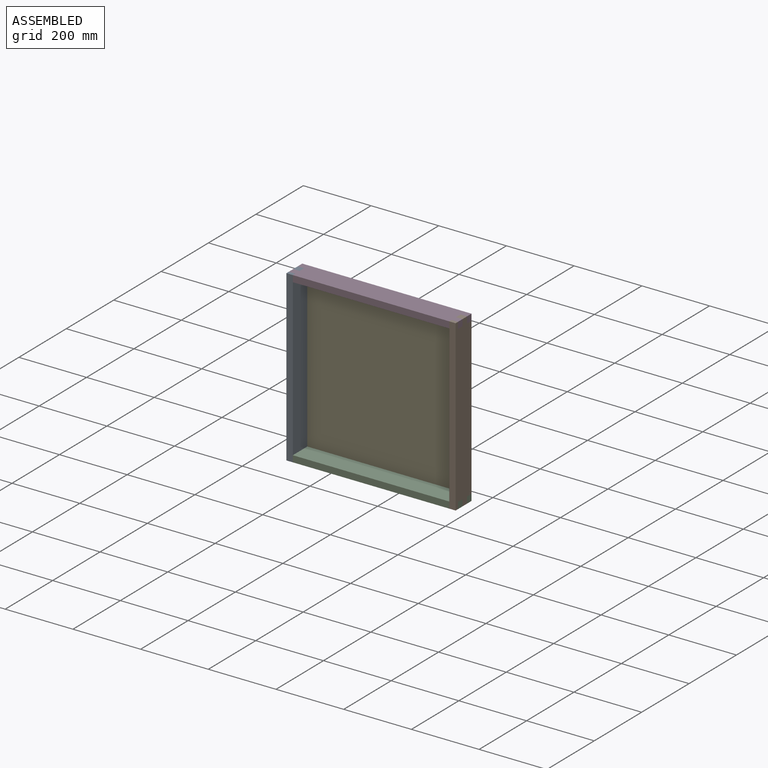
[diagram: assembled view]
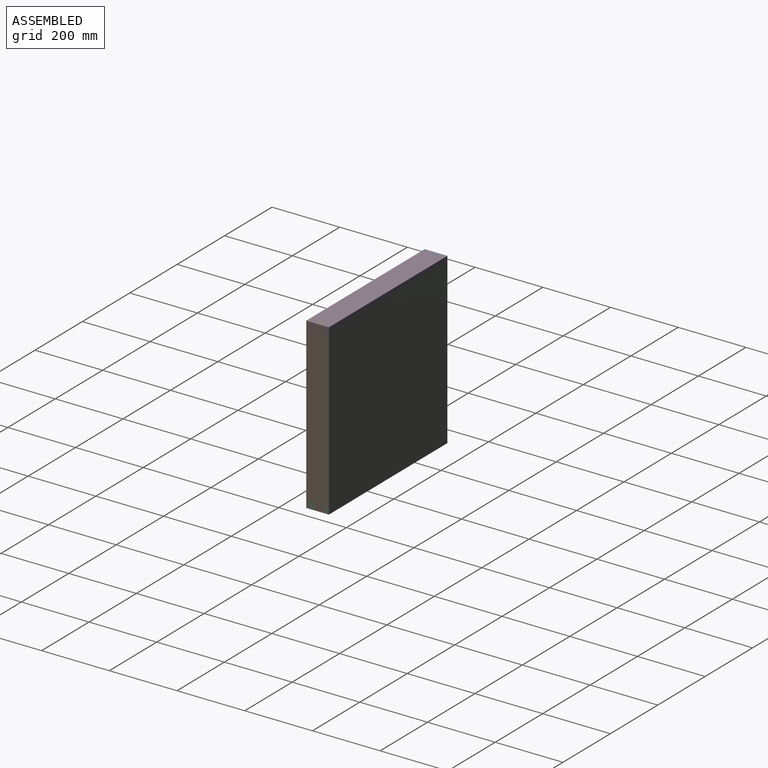
[diagram: assembled view, second angle]
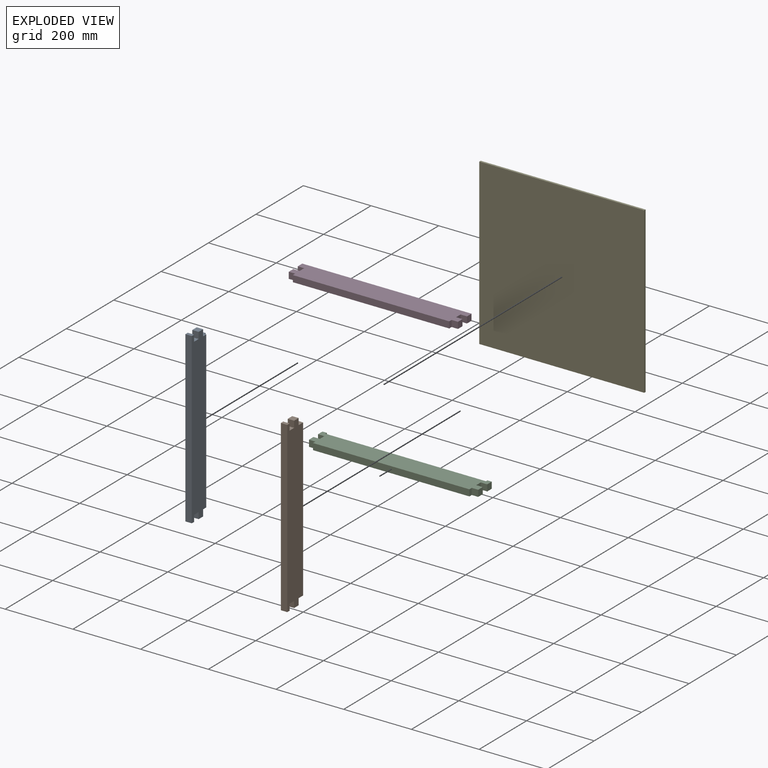
[diagram: exploded view]
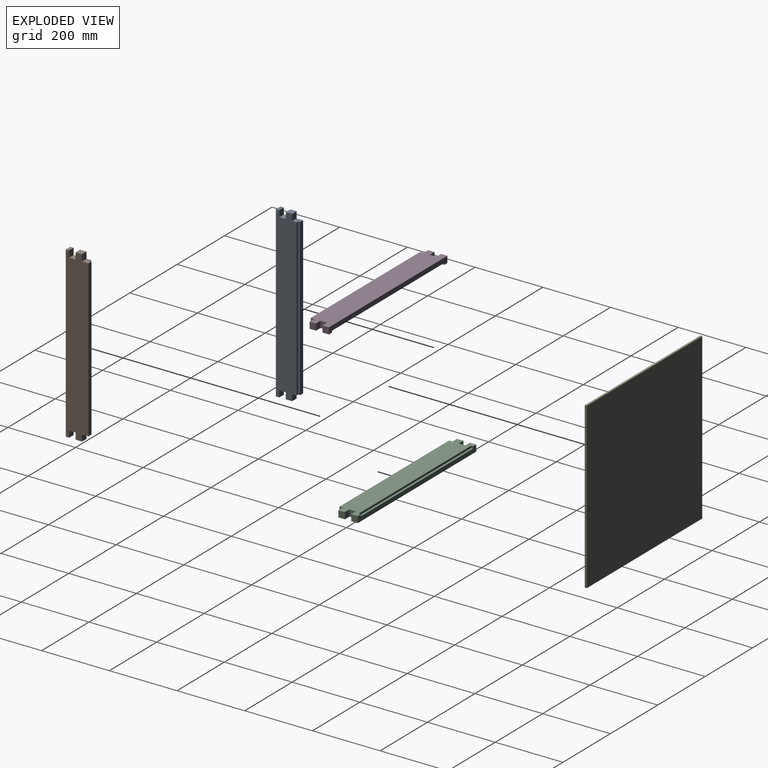
[diagram: exploded view, second angle]
ASSEMBLY  parts=5 mates=4
PART A: 20 faces, bbox 500x67x19 mm
  f0: plane 462x13mm, normal (0,1,0), area 6006mm2, adj f6,f15,f16,f19
  f1: plane 500x61mm, normal (0,0,1), area 29284mm2, adj f2,f3,f4,f5,f7,f8,f9,f10
  f2: plane 19x19mm, normal (-1,0,0), area 361mm2, adj f1,f6,f9,f17
  f3: plane 19x10mm, normal (-1,0,0), area 190mm2, adj f1,f6,f7,f10
  f4: plane 19x10mm, normal (1,0,0), area 190mm2, adj f1,f6,f7,f13
  f5: plane 19x19mm, normal (1,0,0), area 361mm2, adj f1,f6,f11,f14
  f6: plane 500x67mm, normal (0,0,-1), area 32056mm2, adj f0,f2,f3,f4,f5,f7,f8,f9
  f7: plane 500x19mm, normal (0,-1,0), area 9500mm2, adj f1,f3,f4,f6
  f8: plane 19x19mm, normal (-1,0,0), area 361mm2, adj f1,f6,f9,f10
  f9: plane 19x19mm, normal (0,-1,0), area 361mm2, adj f1,f2,f6,f8
  f10: plane 19x19mm, normal (0,1,0), area 361mm2, adj f1,f3,f6,f8
  f11: plane 19x19mm, normal (0,-1,0), area 361mm2, adj f1,f5,f6,f12
  f12: plane 19x19mm, normal (1,0,0), area 361mm2, adj f1,f6,f11,f13
  f13: plane 19x19mm, normal (0,1,0), area 361mm2, adj f1,f4,f6,f12
  f14: plane 19x19mm, normal (0,1,0), area 361mm2, adj f1,f5,f6,f15
  f15: plane 19x19mm, normal (1,0,0), area 325mm2, adj f0,f1,f6,f14,f18,f19
  f16: plane 19x19mm, normal (-1,0,0), area 325mm2, adj f0,f1,f6,f17,f18,f19
  f17: plane 19x19mm, normal (0,1,0), area 361mm2, adj f1,f2,f6,f16
  f18: plane 462x6mm, normal (0,1,0), area 2772mm2, adj f1,f15,f16,f19
  f19: plane 462x6mm, normal (0,0,1), area 2772mm2, adj f0,f15,f16,f18
PART B: same geometry as A
PART C: 22 faces, bbox 500x67x19 mm
  f0: plane 500x67mm, normal (0,0,1), area 29554mm2, adj f1,f2,f3,f4,f6,f7,f8,f9
  f1: plane 500x19mm, normal (0,1,0), area 6656mm2, adj f0,f5,f6,f7,f18,f19,f21
  f2: plane 19x19mm, normal (-1,0,0), area 361mm2, adj f0,f5,f13,f15
  f3: plane 462x19mm, normal (0,-1,0), area 8778mm2, adj f0,f5,f14,f17
  f4: plane 19x19mm, normal (1,0,0), area 361mm2, adj f0,f5,f10,f16
  f5: plane 500x67mm, normal (0,0,-1), area 32398mm2, adj f1,f2,f3,f4,f6,f7,f8,f9
  f6: plane 19x19mm, normal (-1,0,0), area 361mm2, adj f0,f1,f5,f12
  f7: plane 19x19mm, normal (1,0,0), area 361mm2, adj f0,f1,f5,f8
  f8: plane 19x19mm, normal (0,-1,0), area 361mm2, adj f0,f5,f7,f9
  f9: plane 19x19mm, normal (1,0,0), area 361mm2, adj f0,f5,f8,f10
  f10: plane 19x19mm, normal (0,1,0), area 361mm2, adj f0,f4,f5,f9
  f11: plane 19x19mm, normal (-1,0,0), area 361mm2, adj f0,f5,f12,f13
  f12: plane 19x19mm, normal (0,-1,0), area 361mm2, adj f0,f5,f6,f11
  f13: plane 19x19mm, normal (0,1,0), area 361mm2, adj f0,f2,f5,f11
  f14: plane 19x10mm, normal (-1,0,0), area 190mm2, adj f0,f3,f5,f15
  f15: plane 19x19mm, normal (0,-1,0), area 361mm2, adj f0,f2,f5,f14
  f16: plane 19x19mm, normal (0,-1,0), area 361mm2, adj f0,f4,f5,f17
  f17: plane 19x10mm, normal (1,0,0), area 190mm2, adj f0,f3,f5,f16
  f18: plane 6x6mm, normal (-1,0,0), area 36mm2, adj f0,f1,f20,f21
  f19: plane 6x6mm, normal (1,0,0), area 36mm2, adj f0,f1,f20,f21
  f20: plane 474x6mm, normal (0,1,0), area 2844mm2, adj f0,f18,f19,f21
  f21: plane 474x6mm, normal (0,0,1), area 2844mm2, adj f1,f18,f19,f20
PART D: 22 faces, bbox 500x67x19 mm
  f0: plane 500x67mm, normal (0,0,-1), area 29554mm2, adj f1,f2,f3,f4,f6,f7,f8,f9
  f1: plane 500x19mm, normal (0,1,0), area 6656mm2, adj f0,f5,f6,f7,f18,f20,f21
  f2: plane 19x19mm, normal (-1,0,0), area 361mm2, adj f0,f5,f13,f15
  f3: plane 462x19mm, normal (0,-1,0), area 8778mm2, adj f0,f5,f14,f17
  f4: plane 19x19mm, normal (1,0,0), area 361mm2, adj f0,f5,f10,f16
  f5: plane 500x67mm, normal (0,0,1), area 32398mm2, adj f1,f2,f3,f4,f6,f7,f8,f9
  f6: plane 19x19mm, normal (-1,0,0), area 361mm2, adj f0,f1,f5,f12
  f7: plane 19x19mm, normal (1,0,0), area 361mm2, adj f0,f1,f5,f8
  f8: plane 19x19mm, normal (0,-1,0), area 361mm2, adj f0,f5,f7,f9
  f9: plane 19x19mm, normal (1,0,0), area 361mm2, adj f0,f5,f8,f10
  f10: plane 19x19mm, normal (0,1,0), area 361mm2, adj f0,f4,f5,f9
  f11: plane 19x19mm, normal (-1,0,0), area 361mm2, adj f0,f5,f12,f13
  f12: plane 19x19mm, normal (0,-1,0), area 361mm2, adj f0,f5,f6,f11
  f13: plane 19x19mm, normal (0,1,0), area 361mm2, adj f0,f2,f5,f11
  f14: plane 19x10mm, normal (-1,0,0), area 190mm2, adj f0,f3,f5,f15
  f15: plane 19x19mm, normal (0,-1,0), area 361mm2, adj f0,f2,f5,f14
  f16: plane 19x19mm, normal (0,-1,0), area 361mm2, adj f0,f4,f5,f17
  f17: plane 19x10mm, normal (1,0,0), area 190mm2, adj f0,f3,f5,f16
  f18: plane 6x6mm, normal (-1,0,0), area 36mm2, adj f0,f1,f19,f21
  f19: plane 474x6mm, normal (0,1,0), area 2844mm2, adj f0,f18,f20,f21
  f20: plane 6x6mm, normal (1,0,0), area 36mm2, adj f0,f1,f19,f21
  f21: plane 474x6mm, normal (0,0,-1), area 2844mm2, adj f1,f18,f19,f20
PART E: 6 faces, bbox 487x6x487 mm
  f0: plane 487x6mm, normal (1,0,0), area 2922mm2, adj f1,f3,f4,f5
  f1: plane 487x6mm, normal (0,0,1), area 2922mm2, adj f0,f2,f4,f5
  f2: plane 487x6mm, normal (-1,0,0), area 2922mm2, adj f1,f3,f4,f5
  f3: plane 487x6mm, normal (0,0,-1), area 2922mm2, adj f0,f2,f4,f5
  f4: plane 487x487mm, normal (0,-1,0), area 237169mm2, adj f0,f1,f2,f3
  f5: plane 487x487mm, normal (0,1,0), area 237169mm2, adj f0,f1,f2,f3
PLACE A rot(axis=(0,1,0),90deg) t=(-517.87,-98.6,283.25)mm
PLACE B rot(axis=(0,-1,0),90deg) t=(-17.87,-98.6,294.01)mm
PLACE C t=(-262.49,-98.6,38.63)mm
PLACE D t=(-262.49,-98.6,519.63)mm
PLACE E t=(-234.28,-64.05,240.87)mm
MATE fastened A.f14 <-> C.f12  axis (0,1,0) through (-508.37,-83.05,48.13)mm
MATE fastened E.f4 <-> D.f19  axis (0,-1,0) through (-30.87,-70.05,525.63)mm
MATE fastened D.f15 <-> A.f10  axis (0,-1,0) through (-508.37,-121.05,529.13)mm
MATE fastened B.f14 <-> D.f8  axis (0,1,0) through (-27.37,-83.05,529.13)mm
